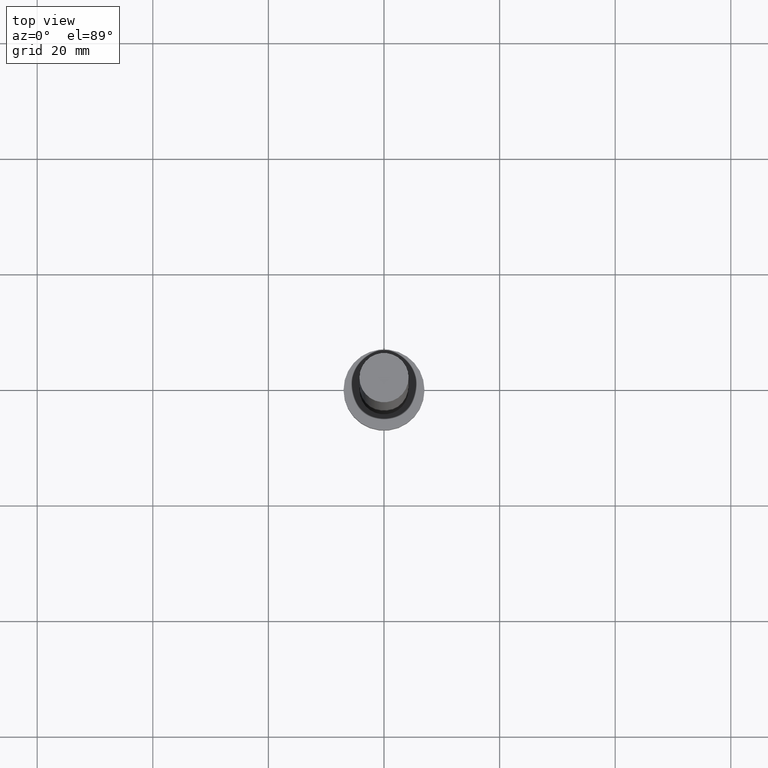
[diagram: clean part render]
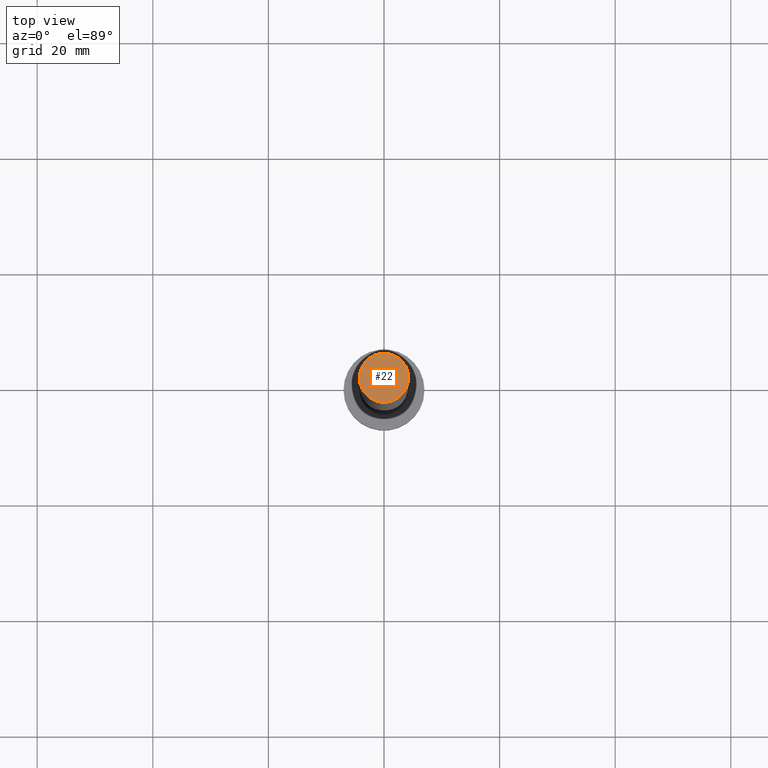
[diagram: same view with one face highlighted and labeled with its STEP entity id]
A machine part, top view. The second image highlights one B-rep face of the part: STEP entity #22.
In plain terms, the highlighted planar face has unit normal (0, 0, 1).
Its self-contained STEP definition (entity closure, byte-faithful):
#1 = DIRECTION ( 'NONE',  ( 1.000000000000000000, 0.000000000000000000, 0.000000000000000000 ) ) ;
#15 = DIRECTION ( 'NONE',  ( 1.000000000000000000, 0.000000000000000000, 0.000000000000000000 ) ) ;
#16 = CARTESIAN_POINT ( 'NONE',  ( 0.000000000000000000, 0.000000000000000000, 125.0000000000000000 ) ) ;
#22 = ADVANCED_FACE ( 'NONE', ( #216 ), #114, .T. ) ;
#27 = CARTESIAN_POINT ( 'NONE',  ( 4.250000000000000000, 5.204748896376250699E-16, 125.0000000000000000 ) ) ;
#37 = CARTESIAN_POINT ( 'NONE',  ( 0.000000000000000000, 0.000000000000000000, 125.0000000000000000 ) ) ;
#47 = VERTEX_POINT ( 'NONE', #135 ) ;
#57 = DIRECTION ( 'NONE',  ( 0.000000000000000000, 0.000000000000000000, 1.000000000000000000 ) ) ;
#67 = VERTEX_POINT ( 'NONE', #27 ) ;
#76 = AXIS2_PLACEMENT_3D ( 'NONE', #87, #195, #91 ) ;
#82 = ORIENTED_EDGE ( 'NONE', *, *, #185, .T. ) ;
#87 = CARTESIAN_POINT ( 'NONE',  ( 0.000000000000000000, 0.000000000000000000, 125.0000000000000000 ) ) ;
#91 = DIRECTION ( 'NONE',  ( 1.000000000000000000, 0.000000000000000000, -0.000000000000000000 ) ) ;
#92 = EDGE_LOOP ( 'NONE', ( #82, #159 ) ) ;
#114 = PLANE ( 'NONE',  #76 ) ;
#135 = CARTESIAN_POINT ( 'NONE',  ( -4.250000000000000000, 0.000000000000000000, 125.0000000000000000 ) ) ;
#146 = EDGE_CURVE ( 'NONE', #67, #47, #181, .T. ) ;
#159 = ORIENTED_EDGE ( 'NONE', *, *, #146, .T. ) ;
#160 = CIRCLE ( 'NONE', #190, 4.250000000000000000 ) ;
#181 = CIRCLE ( 'NONE', #242, 4.250000000000000000 ) ;
#185 = EDGE_CURVE ( 'NONE', #47, #67, #160, .T. ) ;
#187 = DIRECTION ( 'NONE',  ( 0.000000000000000000, 0.000000000000000000, 1.000000000000000000 ) ) ;
#190 = AXIS2_PLACEMENT_3D ( 'NONE', #16, #187, #1 ) ;
#195 = DIRECTION ( 'NONE',  ( 0.000000000000000000, 0.000000000000000000, 1.000000000000000000 ) ) ;
#216 = FACE_OUTER_BOUND ( 'NONE', #92, .T. ) ;
#242 = AXIS2_PLACEMENT_3D ( 'NONE', #37, #57, #15 ) ;